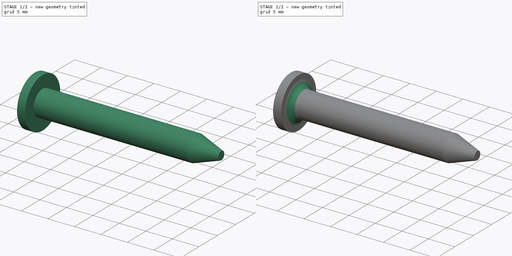
[diagram: build sequence overview — one tinted view per stage of 2, left to right]
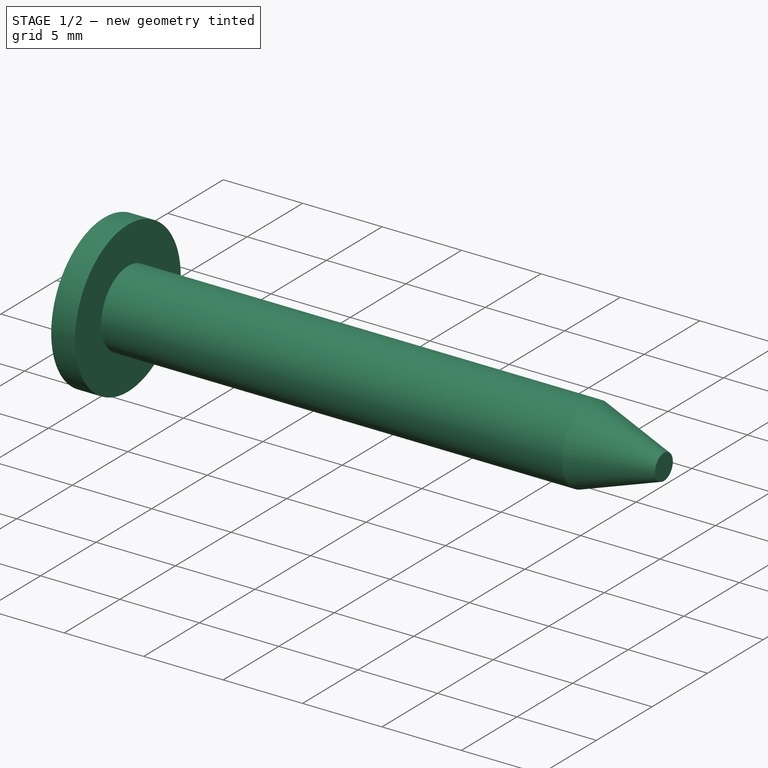
[diagram: stage 1 of 2 — iso view after this stage's code; geometry added in this stage tinted green]
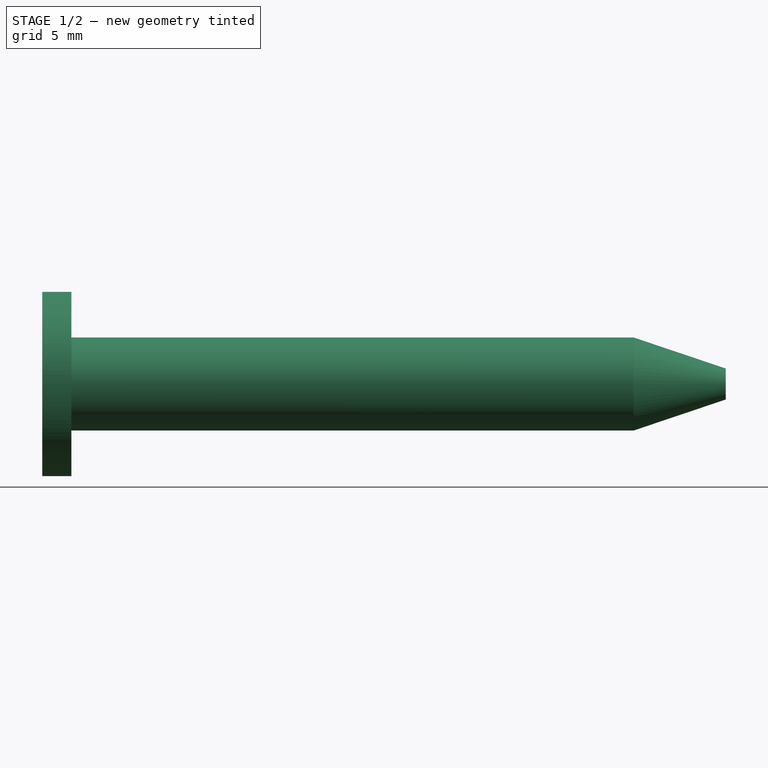
[diagram: stage 1 of 2 — front view after this stage's code; geometry added in this stage tinted green]
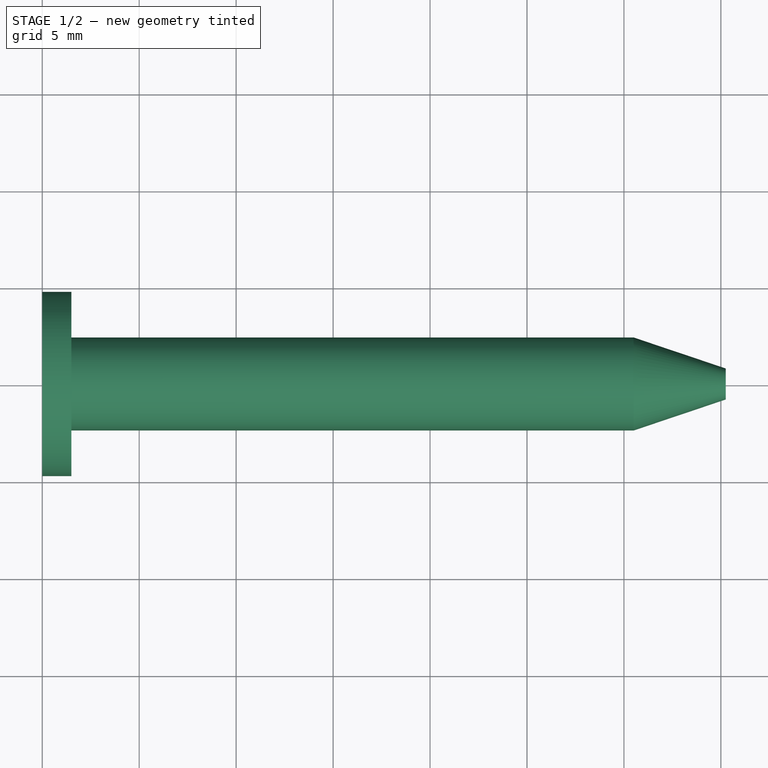
[diagram: stage 1 of 2 — top view after this stage's code; geometry added in this stage tinted green]
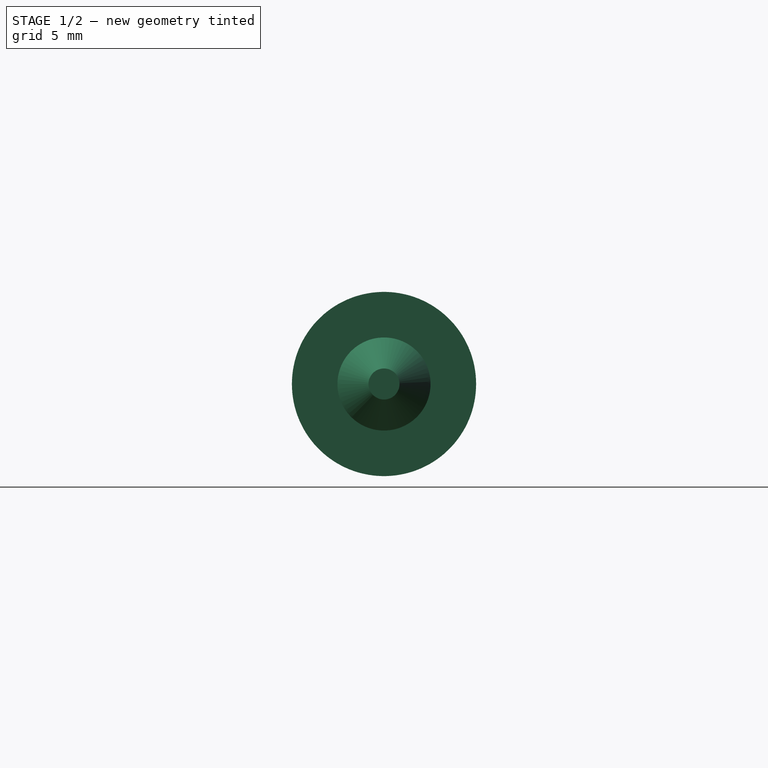
[diagram: stage 1 of 2 — right view after this stage's code; geometry added in this stage tinted green]
FCSTD DOCUMENT  (FreeCAD 0.20R29177 (Git))
Label: Cessna Panel Pin 29
License: Creative Commons Attribution-ShareAlike
LicenseURL: http://creativecommons.org/licenses/by-sa/4.0/
objects: Sketcher::SketchObject×1, PartDesign::Revolution×1, PartDesign::Fillet×1, PartDesign::Body×1
note: 6 computed .brp shape members not serialized (recipe doc carries the construction recipe); baked Part::Feature solids carry a one-line shape summary decoded from their .brp

FEATURE [Sketcher::SketchObject] Sketch
  FullyConstrained = true
  MapMode = 5
  Support = -> [XY_Plane]
  sketch-geometry (9):
    g0: LineSegment StartX=0 StartY=0 StartZ=0 EndX=1.5 EndY=0 EndZ=0
    g1: LineSegment StartX=1.5 StartY=-4.75 StartZ=0 EndX=0 EndY=-4.75 EndZ=0
    g2: LineSegment StartX=0 StartY=-4.75 StartZ=0 EndX=0 EndY=0 EndZ=0
    g3: LineSegment StartX=1.5 StartY=0 StartZ=0 EndX=30.5 EndY=0 EndZ=0
    g4: LineSegment StartX=30.5 StartY=-2.4 StartZ=0 EndX=1.5 EndY=-2.4 EndZ=0
    g5: LineSegment StartX=30.5 StartY=-2.4 StartZ=0 EndX=35.25 EndY=-0.8 EndZ=0
    g6: LineSegment StartX=35.25 StartY=-0.8 StartZ=0 EndX=35.25 EndY=0 EndZ=0
    g7: LineSegment StartX=35.25 StartY=0 StartZ=0 EndX=30.5 EndY=0 EndZ=0
    g8: LineSegment StartX=1.5 StartY=-4.75 StartZ=0 EndX=1.5 EndY=-2.4 EndZ=0
  constraints (26):
    c: Coincident(g1,g2)
    c: Coincident(g2,g0)
    c: Horizontal(g0)
    c: Horizontal(g1)
    c: Vertical(g2)
    c: Coincident(g0,g-1)
    c: Horizontal(g3)
    c: Horizontal(g4)
    c: Coincident(g3,g0)
    c: Vertical(g3,g4)
    c: Coincident(g5,g4)
    c: Coincident(g6,g5)
    c: PointOnObject(g6,g-1)
    c: Vertical(g6)
    c: Coincident(g7,g6)
    c: Coincident(g7,g3)
    c: DistanceX(g0,g0) = 1.5
    c: DistanceY(g2,g2) = 4.75
    c: DistanceY(g4,g0) = 2.4
    c: DistanceX(g3,g3) = 29
    c: DistanceX(g7,g7) = 4.75
    c: DistanceY(g6,g6) = 0.8
    c: Coincident(g8,g1)
    c: Coincident(g8,g4)
    c: Vertical(g8)
    c: Vertical(g0,g4)
FEATURE [PartDesign::Revolution] Revolution
  Angle = 360
  Axis = (1,0,0)
  Base = (0,0,0)
  Profile = -> Sketch
  ReferenceAxis = -> Sketch [H_Axis]
  Reversed = true
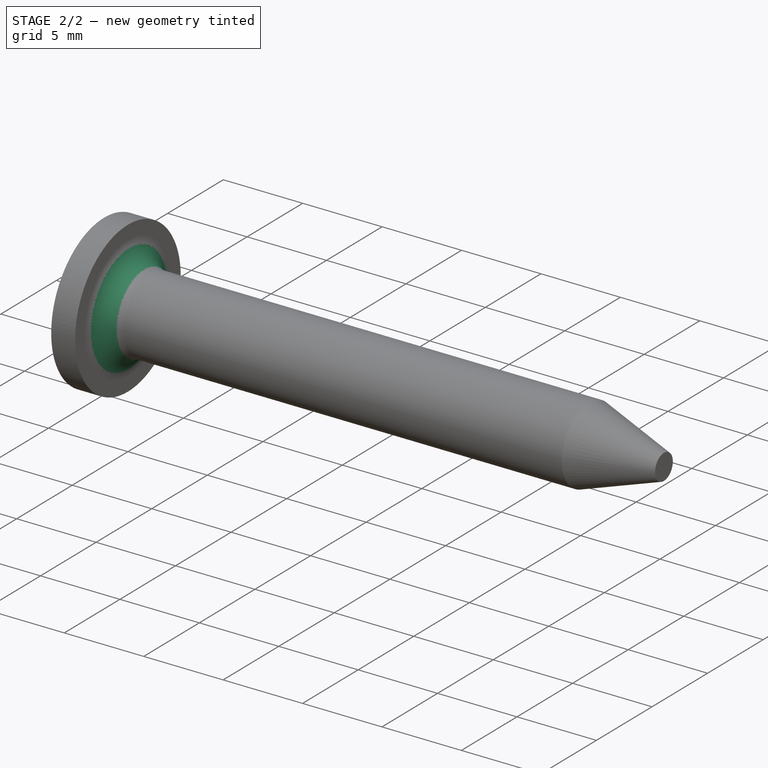
[diagram: stage 2 of 2 — iso view after this stage's code; geometry added in this stage tinted green]
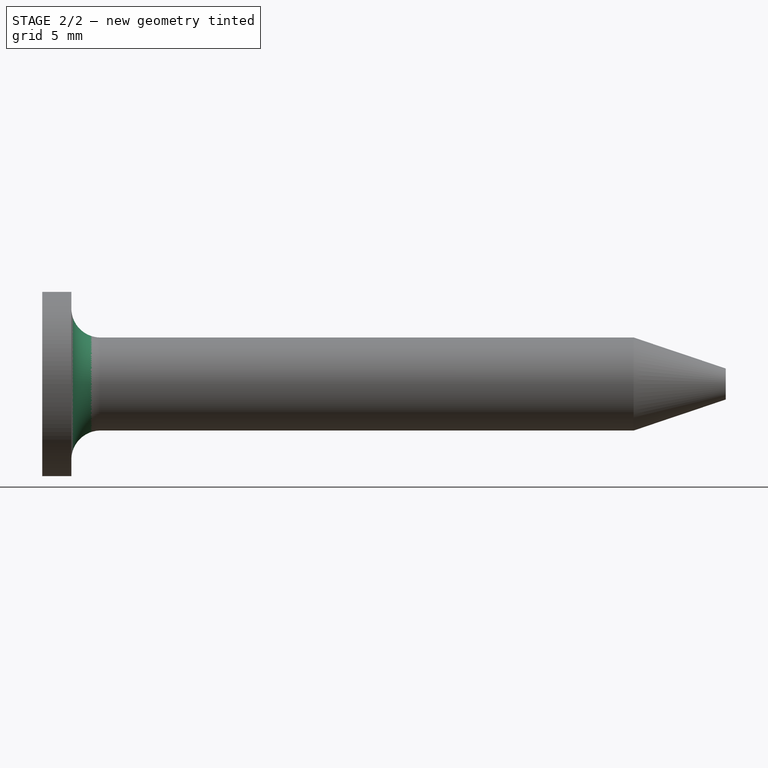
[diagram: stage 2 of 2 — front view after this stage's code; geometry added in this stage tinted green]
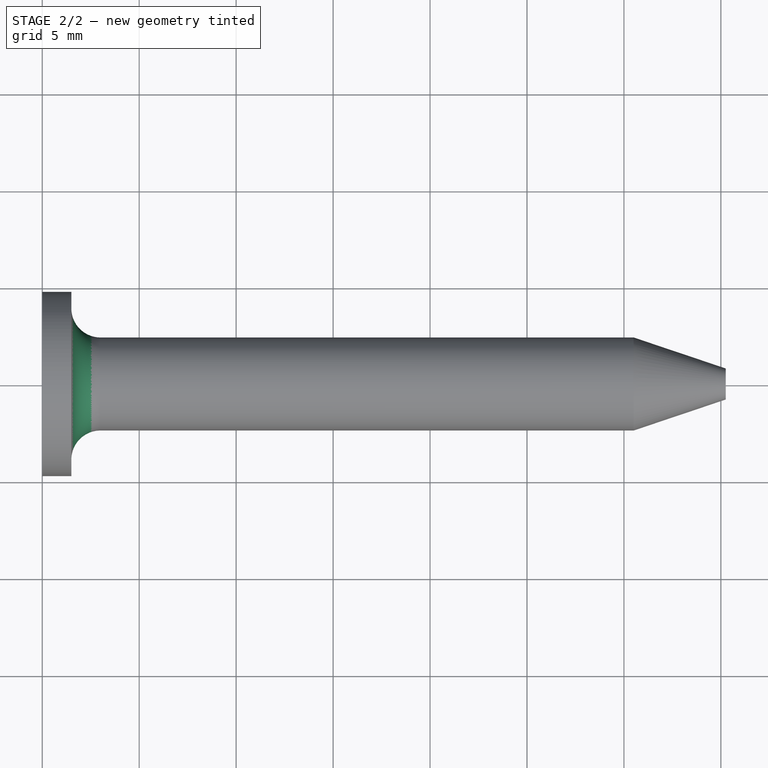
[diagram: stage 2 of 2 — top view after this stage's code; geometry added in this stage tinted green]
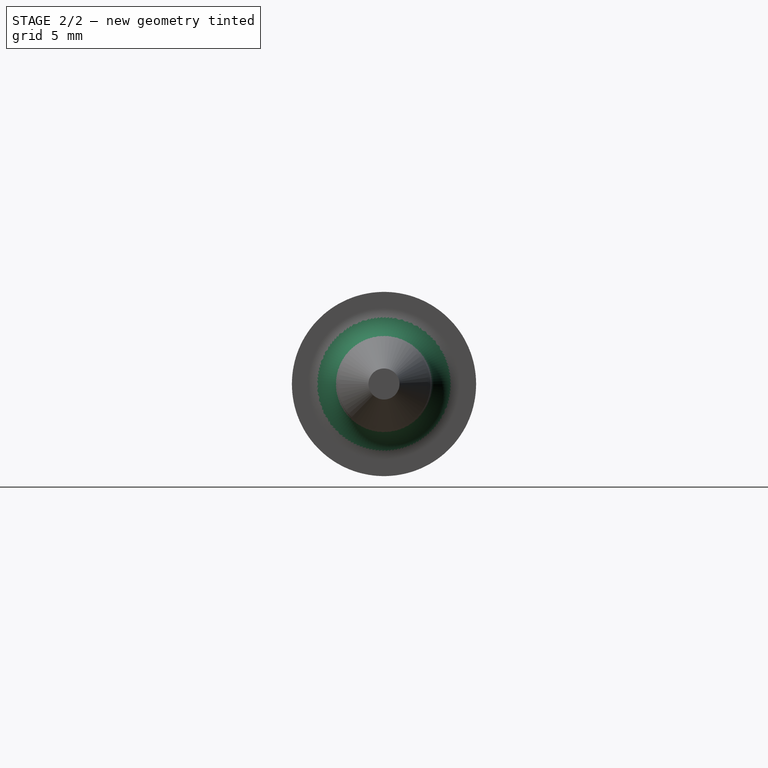
[diagram: stage 2 of 2 — right view after this stage's code; geometry added in this stage tinted green]
FEATURE [PartDesign::Fillet] Fillet
  Base = -> Revolution [Edge7]
  BaseFeature = -> Revolution
  Radius = 1.5
  SupportTransform = false
  UseAllEdges = false
FEATURE [PartDesign::Body] Body
  Group = -> [Sketch,Revolution,Fillet]
  Origin = -> Origin
  Tip = -> Fillet
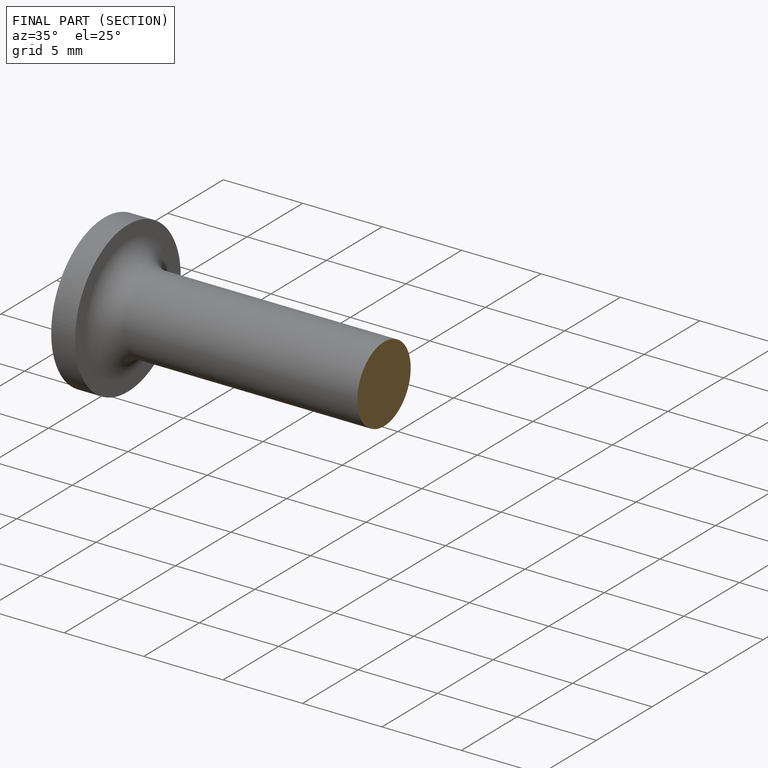
[diagram: finished part — half-section view (interior)]
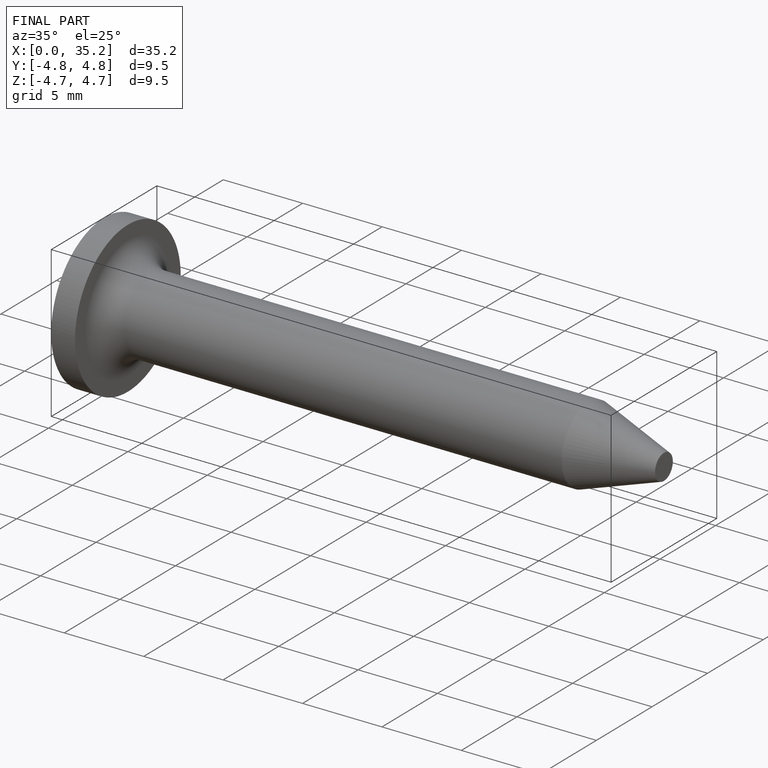
[diagram: finished part — iso view with bounding-box wireframe]
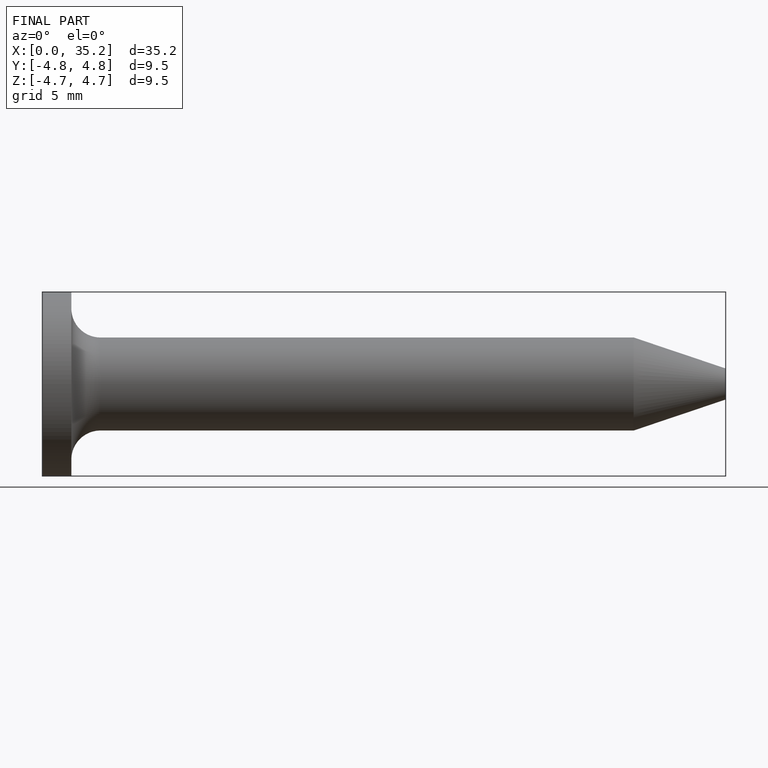
[diagram: finished part — front view with bounding-box wireframe]
